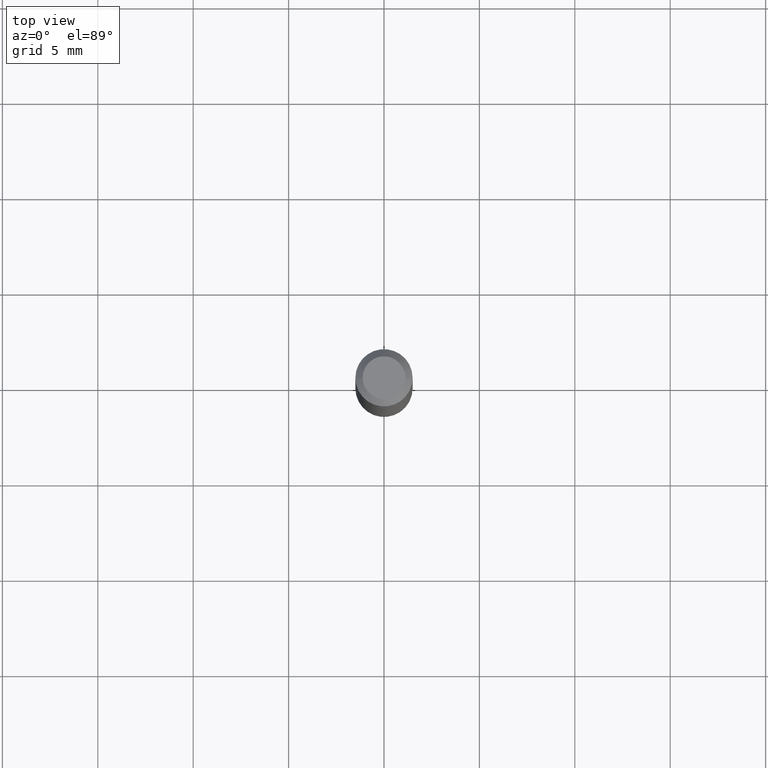
[diagram: clean part render]
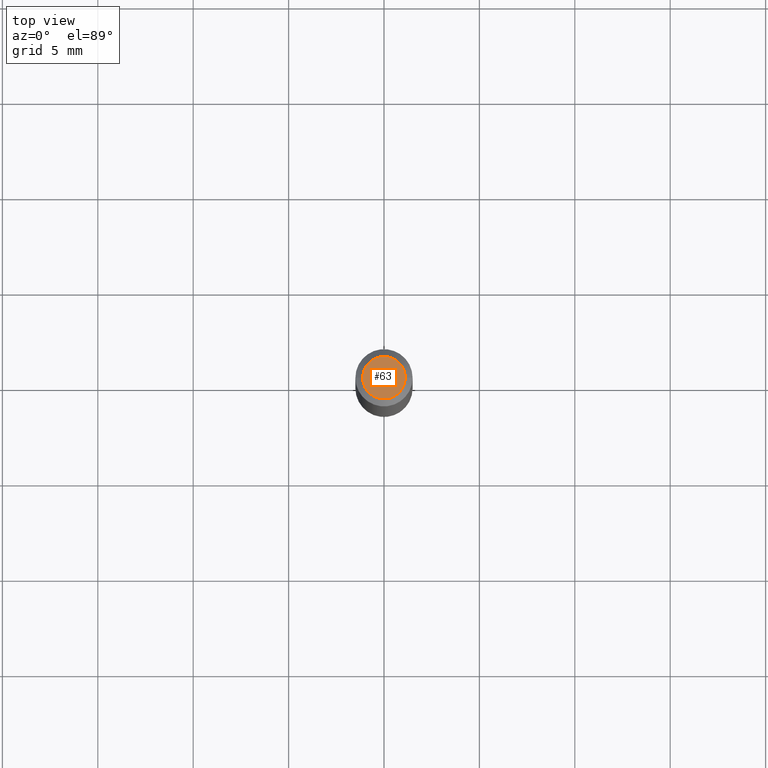
[diagram: same view with one face highlighted and labeled with its STEP entity id]
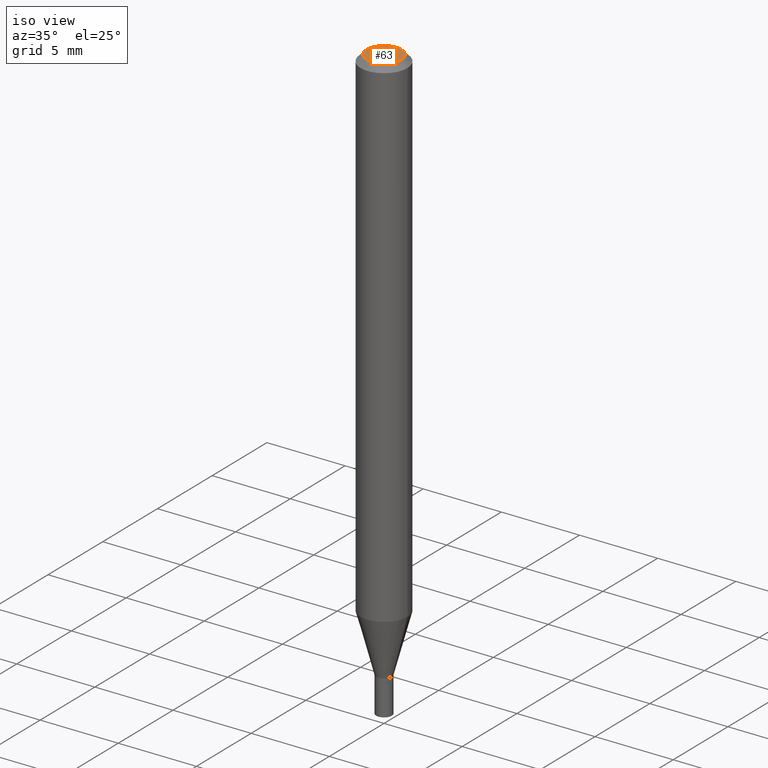
[diagram: same view with one face highlighted and labeled with its STEP entity id]
A machine part, top view. The second image highlights one B-rep face of the part: STEP entity #63.
A second angle (iso view) of the same face is appended — the face is thin or edge-on in the first view.
In plain terms, the highlighted planar face has unit normal (0, -0, -1).
Its self-contained STEP definition (entity closure, byte-faithful):
#10 = DIRECTION ( 'NONE',  ( 1.000000000000000000, -6.982962677686265922E-15, 4.819687581474398999E-29 ) ) ;
#18 = EDGE_CURVE ( 'NONE', #271, #397, #209, .T. ) ;
#63 = ADVANCED_FACE ( 'NONE', ( #134 ), #459, .F. ) ;
#67 = CARTESIAN_POINT ( 'NONE',  ( -8.641182519006289553E-45, 1.233731848647591164E-30, 3.533548453838711334E-16 ) ) ;
#99 = DIRECTION ( 'NONE',  ( -1.000000000000000000, 6.982962677686265922E-15, -4.876176775795935793E-29 ) ) ;
#113 = DIRECTION ( 'NONE',  ( -2.445468806185136597E-29, 3.491481338843145583E-15, 1.000000000000000000 ) ) ;
#122 = CARTESIAN_POINT ( 'NONE',  ( -0.04404999999999999888, 3.337856159934041534E-16, 3.533548453838689148E-16 ) ) ;
#132 = DIRECTION ( 'NONE',  ( 2.438088387897960049E-29, -3.491481338843145188E-15, -1.000000000000000000 ) ) ;
#134 = FACE_OUTER_BOUND ( 'NONE', #402, .T. ) ;
#153 = ORIENTED_EDGE ( 'NONE', *, *, #215, .T. ) ;
#168 = CARTESIAN_POINT ( 'NONE',  ( 0.04404999999999999888, -3.798447818264455642E-16, 3.533548453838735986E-16 ) ) ;
#192 = ORIENTED_EDGE ( 'NONE', *, *, #18, .T. ) ;
#204 = AXIS2_PLACEMENT_3D ( 'NONE', #275, #422, #207 ) ;
#207 = DIRECTION ( 'NONE',  ( 1.000000000000000000, -6.982962677686265922E-15, 4.819687581474398999E-29 ) ) ;
#209 = CIRCLE ( 'NONE', #204, 0.04404999999999999888 ) ;
#215 = EDGE_CURVE ( 'NONE', #397, #271, #301, .T. ) ;
#271 = VERTEX_POINT ( 'NONE', #122 ) ;
#275 = CARTESIAN_POINT ( 'NONE',  ( -8.641182519006289553E-45, 1.233731848647591164E-30, 3.533548453838711334E-16 ) ) ;
#278 = CARTESIAN_POINT ( 'NONE',  ( 3.075995059520799729E-16, 0.04404999999999999888, 2.287766971589501637E-17 ) ) ;
#301 = CIRCLE ( 'NONE', #412, 0.04404999999999999888 ) ;
#397 = VERTEX_POINT ( 'NONE', #168 ) ;
#400 = AXIS2_PLACEMENT_3D ( 'NONE', #278, #132, #99 ) ;
#402 = EDGE_LOOP ( 'NONE', ( #192, #153 ) ) ;
#412 = AXIS2_PLACEMENT_3D ( 'NONE', #67, #113, #10 ) ;
#422 = DIRECTION ( 'NONE',  ( -2.445468806185136597E-29, 3.491481338843145583E-15, 1.000000000000000000 ) ) ;
#459 = PLANE ( 'NONE',  #400 ) ;